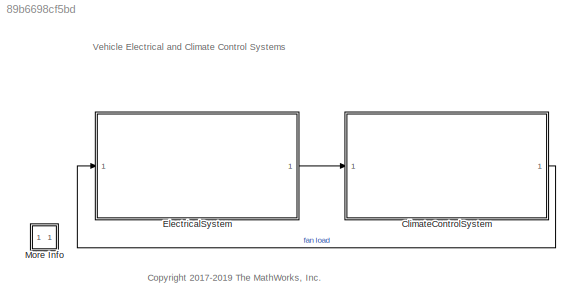
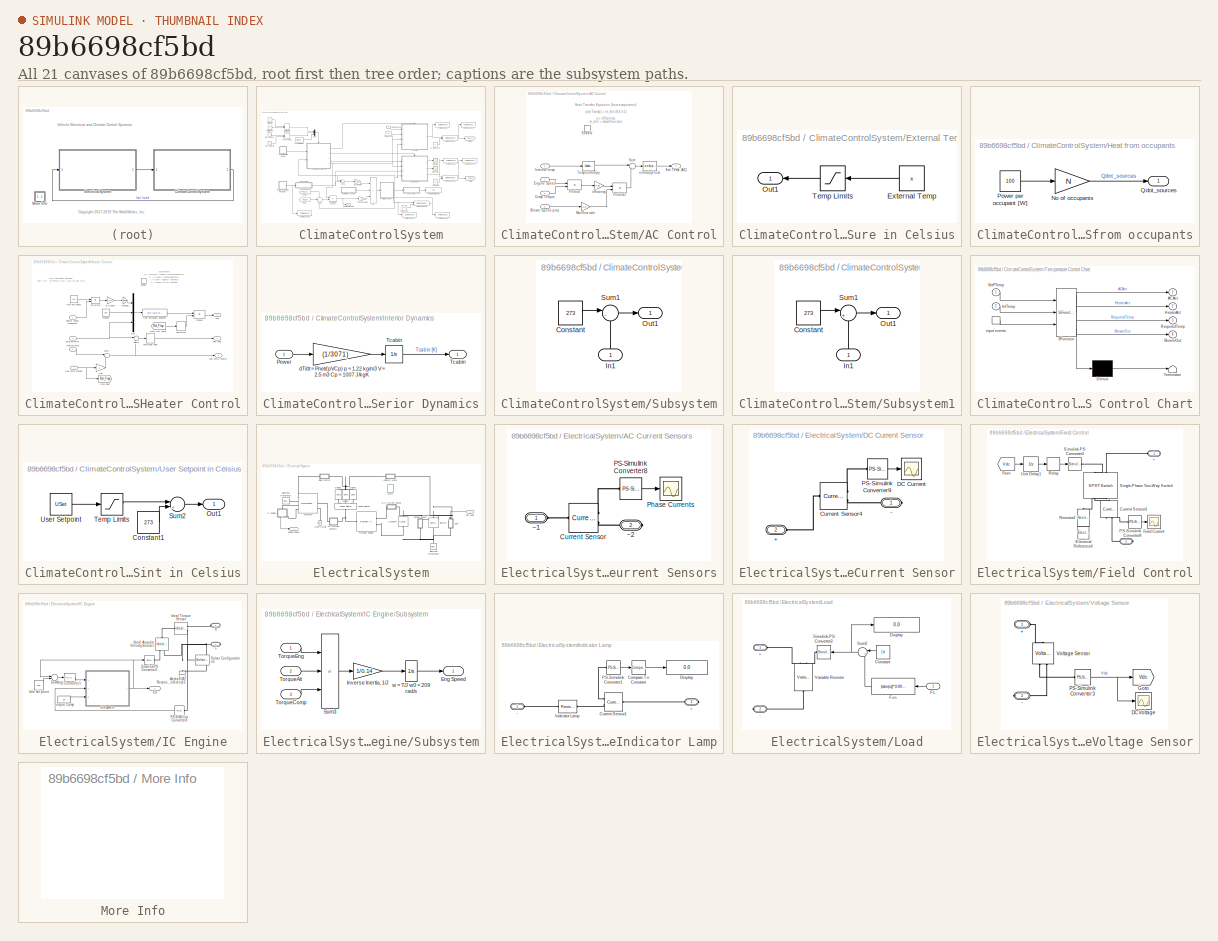
[diagram: thumbnail index - all 21 canvases of the model, root first then tree order]
MODEL slx_89b6698cf5bd
KIND model
CONFIG AbsTol = 1e-4
CONFIG EnableMultiTasking = on
CONFIG FixedStep = auto
CONFIG MaxStep = 1e-4
CONFIG MinStep = auto
CONFIG RelTol = 1e-4
CONFIG SampleTimeConstraint = Unconstrained
CONFIG SolverName = ode23t
CONFIG StartTime = 0.0
CONFIG StopTime = 1
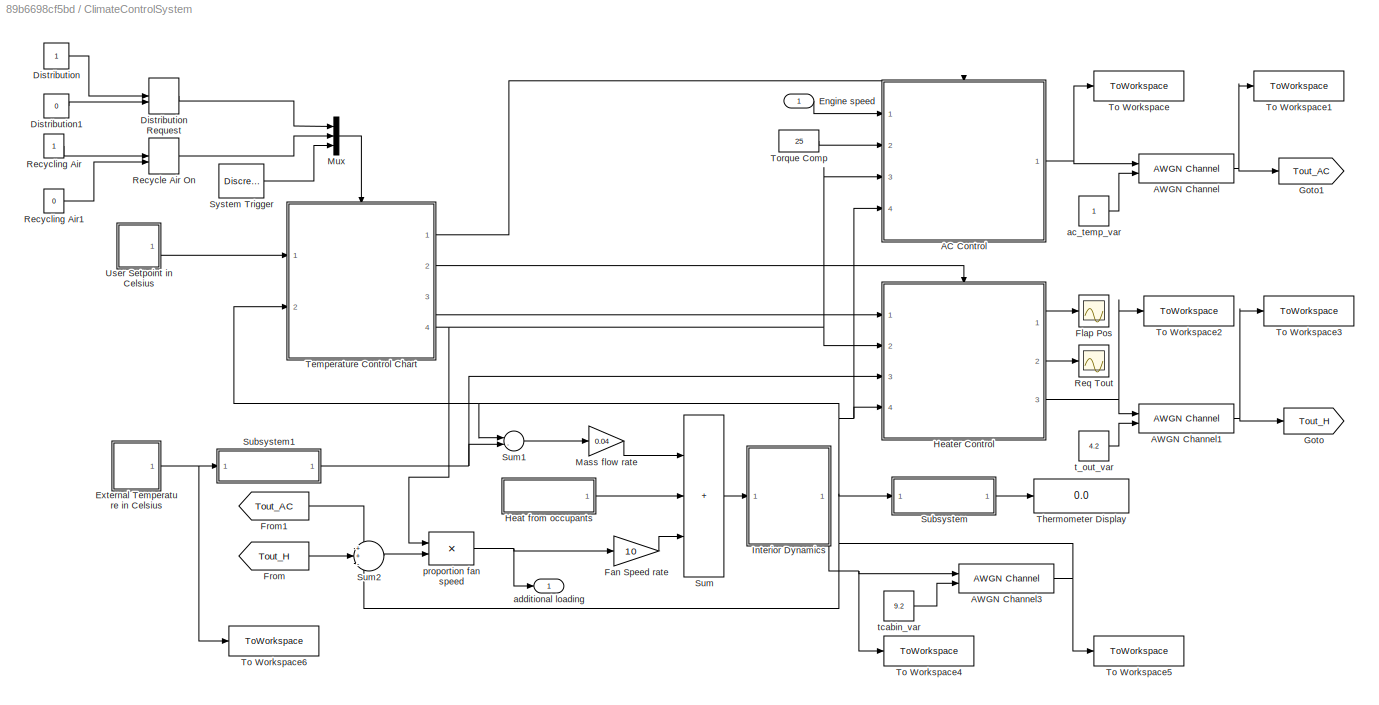
BLOCK [SubSystem] ClimateControlSystem
  Ports = [1, 1]
  RequestExecContextInheritance = off
BLOCK [SubSystem] ClimateControlSystem/AC Control
  Ports = [4, 1, 1]
  RequestExecContextInheritance = off
  TreatAsAtomicUnit = on
BLOCK [Inport] ClimateControlSystem/AC Control/Blower Speed prop
  Port = 3
BLOCK [Inport] ClimateControlSystem/AC Control/Comp Torque
  Port = 2
BLOCK [EnablePort] ClimateControlSystem/AC Control/Enable
  Ports = []
  PropagateVarSize = During execution
  StatesWhenEnabling = reset
  ZeroCross = off
BLOCK [Inport] ClimateControlSystem/AC Control/Engine Speed
BLOCK [Outport] ClimateControlSystem/AC Control/Exit Temp (AC)
  InitialOutput = 0
  OutputWhenDisabled = reset
  VectorParamsAs1DForOutWhenUnconnected = off
BLOCK [Inport] ClimateControlSystem/AC Control/Internal temp
  Port = 4
BLOCK [Gain] ClimateControlSystem/AC Control/Max flow rate
  Gain = 0.12
  OutDataTypeStr = Inherit: Same as input
  ParamDataTypeStr = Inherit: Same as input
  SaturateOnIntegerOverflow = on
BLOCK [Product] ClimateControlSystem/AC Control/Product
  InputSameDT = on
  OutDataTypeStr = Inherit: Same as first input
  Ports = [2, 1]
  SaturateOnIntegerOverflow = on
BLOCK [Product] ClimateControlSystem/AC Control/Product1
  InputSameDT = on
  Inputs = */
  OutDataTypeStr = Inherit: Same as first input
  Ports = [2, 1]
  SaturateOnIntegerOverflow = on
BLOCK [Sum] ClimateControlSystem/AC Control/Sum
  InputSameDT = on
  Inputs = |+-
  OutDataTypeStr = Inherit: Same as first input
  Ports = [2, 1]
  SaturateOnIntegerOverflow = on
BLOCK [Lookup_n-D] ClimateControlSystem/AC Control/Temp//enthalpy
  BreakpointsForDimension1 = [220 230 240 250 260 270 280 285 290 295 300 305 310 315 320]
  InputPortMap = u0
  NumberOfTableDimensions = 1
  Ports = [1, 1]
  SaturateOnIntegerOverflow = on
  Table = [219.97 230.02 240.02 250.05 260.09 270.11 280.13 285.14 290.16 295.17 300.19 305.22 310.24 315.27 320.29]
BLOCK [Gain] ClimateControlSystem/AC Control/efficiency
  Gain = 0.86
  OutDataTypeStr = Inherit: Same as input
  ParamDataTypeStr = Inherit: Same as input
  SaturateOnIntegerOverflow = on
BLOCK [Lookup_n-D] ClimateControlSystem/AC Control/enthalpy//Texit
  BreakpointsForDimension1 = [219.97 230.02 240.02 250.05 260.09 270.11 280.13 285.14 290.16 295.17 300.19 305.22 310.24 315.27 320.29]
  InputPortMap = u0
  NumberOfTableDimensions = 1
  Ports = [1, 1]
  SaturateOnIntegerOverflow = on
  Table = [220 230 240 250 260 270 280 285 290 295 300 305 310 315 320]
BLOCK [Reference] ClimateControlSystem/AWGN Channel  REF=commchan3/AWGN
Channel
  Ports = [2, 1]
  SourceBlock = commchan3/AWGN\nChannel
  SourceProductBaseCode = CM
  SourceType = AWGN Channel
  UserDataPersistent = on
BLOCK [Reference] ClimateControlSystem/AWGN Channel1  REF=commchan3/AWGN
Channel
  Ports = [2, 1]
  SourceBlock = commchan3/AWGN\nChannel
  SourceProductBaseCode = CM
  SourceType = AWGN Channel
  UserDataPersistent = on
BLOCK [Reference] ClimateControlSystem/AWGN Channel3  REF=commchan3/AWGN
Channel
  Ports = [2, 1]
  SourceBlock = commchan3/AWGN\nChannel
  SourceProductBaseCode = CM
  SourceType = AWGN Channel
  UserDataPersistent = on
BLOCK [Constant] ClimateControlSystem/Distribution 
BLOCK [ManualSwitch] ClimateControlSystem/Distribution Request
  CurrentSetting = 0
  NameLocation = top
BLOCK [Constant] ClimateControlSystem/Distribution1 
  Value = 0
BLOCK [Inport] ClimateControlSystem/Engine speed
BLOCK [SubSystem] ClimateControlSystem/External Temperature in Celsius
  Ports = [0, 1]
  RequestExecContextInheritance = off
BLOCK [Constant] ClimateControlSystem/External Temperature in Celsius/External Temp
  Value = x
BLOCK [Outport] ClimateControlSystem/External Temperature in Celsius/Out1
  VectorParamsAs1DForOutWhenUnconnected = off
BLOCK [Saturate] ClimateControlSystem/External Temperature in Celsius/Temp Limits
  LowerLimit = -99
  UpperLimit = 100
BLOCK [Gain] ClimateControlSystem/Fan Speed rate
  Gain = 10
  OutDataTypeStr = Inherit: Same as input
  ParamDataTypeStr = Inherit: Same as input
  SaturateOnIntegerOverflow = on
BLOCK [Scope] ClimateControlSystem/Flap Pos
  Floating = off
  NumInputPorts = 1
  Ports = [1]
  ScopeSpecificationString = Simulink.scopes.TimeScopeBlockCfg('CurrentConfiguration', extmgr.ConfigurationSet(extmgr.Configuration('Core','General UI',true),extmgr.Configuration('Core','Source UI',true),extmgr.Configuration('Sources','WiredSimulink',true,'DataLoggingSaveFormat','StructureWithTime','DataLoggingDecimation','1'),extmgr.Configuration('Visuals','Time Domain',true,'SerializedDisplays',{struct('MinYLimReal','-1.000...<+1768ch>
BLOCK [From] ClimateControlSystem/From
  CloseFcn = tagdialog Close
  GotoTag = Tout_H
BLOCK [From] ClimateControlSystem/From1
  CloseFcn = tagdialog Close
  GotoTag = Tout_AC
BLOCK [Goto] ClimateControlSystem/Goto
  GotoTag = Tout_H
BLOCK [Goto] ClimateControlSystem/Goto1
  GotoTag = Tout_AC
BLOCK [SubSystem] ClimateControlSystem/Heat from occupants
  AttributesFormatString = No. of occupants: %<N>
  Ports = [0, 1]
  RequestExecContextInheritance = off
BLOCK [Gain] ClimateControlSystem/Heat from occupants/No of occupants
  Gain = N
  OutDataTypeStr = Inherit: Same as input
  ParamDataTypeStr = Inherit: Same as input
  SaturateOnIntegerOverflow = on
BLOCK [Constant] ClimateControlSystem/Heat from occupants/Power per occupant [W]
  Value = 100
BLOCK [Outport] ClimateControlSystem/Heat from occupants/Qdot_sources
  VectorParamsAs1DForOutWhenUnconnected = off
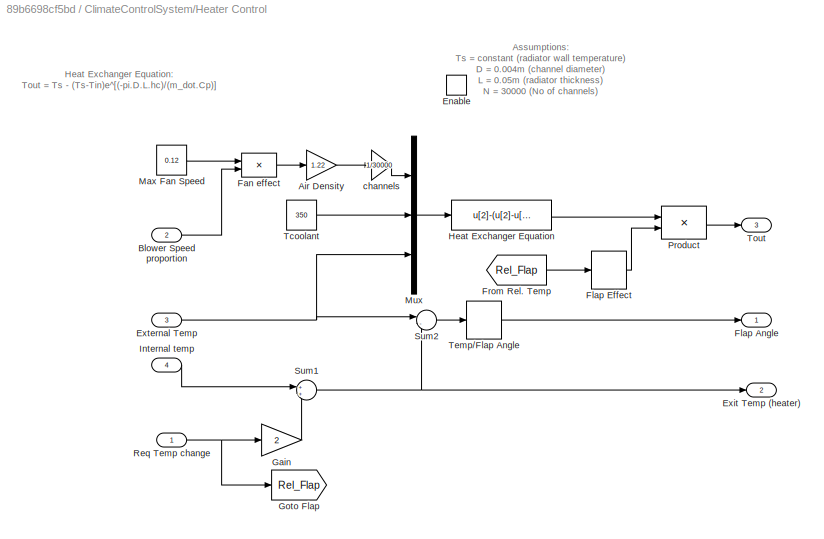
BLOCK [SubSystem] ClimateControlSystem/Heater Control
  Ports = [4, 3, 1]
  RequestExecContextInheritance = off
  TreatAsAtomicUnit = on
BLOCK [Gain] ClimateControlSystem/Heater Control/Air Density
  Gain = 1.22
  OutDataTypeStr = Inherit: Same as input
  ParamDataTypeStr = Inherit: Same as input
  SaturateOnIntegerOverflow = on
BLOCK [Inport] ClimateControlSystem/Heater Control/Blower Speed proportion
  Port = 2
BLOCK [EnablePort] ClimateControlSystem/Heater Control/Enable
  Ports = []
  PropagateVarSize = During execution
  StatesWhenEnabling = reset
  ZeroCross = off
BLOCK [Outport] ClimateControlSystem/Heater Control/Exit Temp (heater)
  InitialOutput = 0
  OutputWhenDisabled = reset
  Port = 2
  VectorParamsAs1DForOutWhenUnconnected = off
BLOCK [Inport] ClimateControlSystem/Heater Control/External Temp
  Port = 3
BLOCK [Product] ClimateControlSystem/Heater Control/Fan effect
  InputSameDT = on
  OutDataTypeStr = Inherit: Same as first input
  Ports = [2, 1]
  SaturateOnIntegerOverflow = on
BLOCK [Outport] ClimateControlSystem/Heater Control/Flap Angle
  InitialOutput = 0
  OutputWhenDisabled = reset
  VectorParamsAs1DForOutWhenUnconnected = off
BLOCK [Lookup_n-D] ClimateControlSystem/Heater Control/Flap Effect
  BreakpointsForDimension1 = [0 3 5 10 50  90 100 200 ]
  InputPortMap = u0
  NumberOfTableDimensions = 1
  Ports = [1, 1]
  SaturateOnIntegerOverflow = on
  Table = [0 300 100  10 10  10 3 1]
BLOCK [From] ClimateControlSystem/Heater Control/From Rel. Temp
  CloseFcn = tagdialog Close
  GotoTag = Rel_Flap
BLOCK [Gain] ClimateControlSystem/Heater Control/Gain
  Gain = 2
  OutDataTypeStr = Inherit: Same as input
  ParamDataTypeStr = Inherit: Same as input
  SaturateOnIntegerOverflow = on
BLOCK [Goto] ClimateControlSystem/Heater Control/Goto Flap
  GotoTag = Rel_Flap
BLOCK [Fcn] ClimateControlSystem/Heater Control/Heat Exchanger Equation
  Expr = u[2]-(u[2]-u[3])*exp(-(pi*0.004*0.05*23.8)/(u[1]*1007))
BLOCK [Inport] ClimateControlSystem/Heater Control/Internal temp
  Port = 4
BLOCK [Constant] ClimateControlSystem/Heater Control/Max Fan Speed
  Value = 0.12
BLOCK [Mux] ClimateControlSystem/Heater Control/Mux
  DisplayOption = bar
  Inputs = 3
  Ports = [3, 1]
BLOCK [Product] ClimateControlSystem/Heater Control/Product
  InputSameDT = on
  OutDataTypeStr = Inherit: Same as first input
  Ports = [2, 1]
  SaturateOnIntegerOverflow = on
BLOCK [Inport] ClimateControlSystem/Heater Control/Req Temp change
BLOCK [Sum] ClimateControlSystem/Heater Control/Sum1
  InputSameDT = on
  OutDataTypeStr = Inherit: Same as first input
  Ports = [2, 1]
  SaturateOnIntegerOverflow = on
BLOCK [Sum] ClimateControlSystem/Heater Control/Sum2
  InputSameDT = on
  Inputs = |-+
  NameLocation = top
  OutDataTypeStr = Inherit: Same as first input
  Ports = [2, 1]
  SaturateOnIntegerOverflow = on
BLOCK [Constant] ClimateControlSystem/Heater Control/Tcoolant 
  Value = 350
BLOCK [Lookup_n-D] ClimateControlSystem/Heater Control/Temp//Flap Angle
  BreakpointsForDimension1 = [0 10 20 30 40 50 60 75 100 200]
  InputPortMap = u0
  NumberOfTableDimensions = 1
  Ports = [1, 1]
  SaturateOnIntegerOverflow = on
  Table = [0 20 30 45 60 75 90 90 90 90]
BLOCK [Outport] ClimateControlSystem/Heater Control/Tout
  InitialOutput = 0
  OutputWhenDisabled = reset
  Port = 3
  VectorParamsAs1DForOutWhenUnconnected = off
BLOCK [Gain] ClimateControlSystem/Heater Control/channels
  Gain = 1/30000
  OutDataTypeStr = Inherit: Same as input
  ParamDataTypeStr = Inherit: Same as input
  SaturateOnIntegerOverflow = on
BLOCK [SubSystem] ClimateControlSystem/Interior Dynamics
  Ports = [1, 1]
  RequestExecContextInheritance = off
BLOCK [Inport] ClimateControlSystem/Interior Dynamics/Power
BLOCK [Integrator] ClimateControlSystem/Interior Dynamics/Tcabin
  InitialCondition = 291
  Ports = [1, 1]
  ZeroCross = off
BLOCK [Outport] ClimateControlSystem/Interior Dynamics/Tcabin 
  VectorParamsAs1DForOutWhenUnconnected = off
BLOCK [Gain] ClimateControlSystem/Interior Dynamics/dT//dt = Pnet//(pVCp) p = 1.22 kg//m3 V = 2.5 m3 Cp = 1007 J//kgK
  Gain = (1/3071)
  OutDataTypeStr = Inherit: Same as input
  ParamDataTypeStr = Inherit: Same as input
  SaturateOnIntegerOverflow = on
BLOCK [Gain] ClimateControlSystem/Mass flow rate
  Gain = 0.04
  OutDataTypeStr = Inherit: Same as input
  ParamDataTypeStr = Inherit: Same as input
  SaturateOnIntegerOverflow = on
BLOCK [Mux] ClimateControlSystem/Mux
  DisplayOption = bar
  Inputs = 3
  Ports = [3, 1]
BLOCK [ManualSwitch] ClimateControlSystem/Recycle Air On
  CurrentSetting = 0
BLOCK [Constant] ClimateControlSystem/Recycling Air
BLOCK [Constant] ClimateControlSystem/Recycling Air1
  Value = 0
BLOCK [Scope] ClimateControlSystem/Req Tout
  Floating = off
  NumInputPorts = 1
  Ports = [1]
  ScopeSpecificationString = Simulink.scopes.TimeScopeBlockCfg('CurrentConfiguration', extmgr.ConfigurationSet(extmgr.Configuration('Core','General UI',true),extmgr.Configuration('Core','Source UI',true),extmgr.Configuration('Sources','WiredSimulink',true,'DataLoggingVariableName','ScopeData1','DataLoggingSaveFormat','StructureWithTime','DataLoggingDecimation','1'),extmgr.Configuration('Visuals','Time Domain',true,'Serialized...<+1782ch>
BLOCK [SubSystem] ClimateControlSystem/Subsystem
  NameLocation = top
  Ports = [1, 1]
  RequestExecContextInheritance = off
BLOCK [Constant] ClimateControlSystem/Subsystem/Constant
  Value = 273
BLOCK [Inport] ClimateControlSystem/Subsystem/In1
  NameLocation = right
BLOCK [Outport] ClimateControlSystem/Subsystem/Out1
  VectorParamsAs1DForOutWhenUnconnected = off
BLOCK [Sum] ClimateControlSystem/Subsystem/Sum1
  InputSameDT = on
  Inputs = |-+
  OutDataTypeStr = Inherit: Same as first input
  Ports = [2, 1]
  SaturateOnIntegerOverflow = on
BLOCK [SubSystem] ClimateControlSystem/Subsystem1
  NameLocation = top
  Ports = [1, 1]
  RequestExecContextInheritance = off
BLOCK [Constant] ClimateControlSystem/Subsystem1/Constant
  Value = 273
BLOCK [Inport] ClimateControlSystem/Subsystem1/In1
  NameLocation = right
BLOCK [Outport] ClimateControlSystem/Subsystem1/Out1
  VectorParamsAs1DForOutWhenUnconnected = off
BLOCK [Sum] ClimateControlSystem/Subsystem1/Sum1
  InputSameDT = on
  Inputs = |++
  OutDataTypeStr = Inherit: Same as first input
  Ports = [2, 1]
  SaturateOnIntegerOverflow = on
BLOCK [Sum] ClimateControlSystem/Sum
  IconShape = rectangular
  InputSameDT = on
  Inputs = +++
  OutDataTypeStr = Inherit: Same as first input
  Ports = [3, 1]
  SaturateOnIntegerOverflow = on
BLOCK [Sum] ClimateControlSystem/Sum1
  InputSameDT = on
  Inputs = |-+
  OutDataTypeStr = Inherit: Same as first input
  Ports = [2, 1]
  SaturateOnIntegerOverflow = on
BLOCK [Sum] ClimateControlSystem/Sum2
  InputSameDT = on
  Inputs = ++-
  OutDataTypeStr = Inherit: Same as first input
  Ports = [3, 1]
  SaturateOnIntegerOverflow = on
BLOCK [DiscretePulseGenerator] ClimateControlSystem/System Trigger
  Period = 1/60
  Ports = [0, 1]
  PulseType = Time based
  PulseWidth = 50
BLOCK [SubSystem] ClimateControlSystem/Temperature Control Chart
  ErrorFcn = Stateflow.Translate.translate
  PermitHierarchicalResolution = ExplicitOnly
  Ports = [2, 4, 0, 1]
  RequestExecContextInheritance = off
  SFBlockType = Chart
  TreatAsAtomicUnit = on
BLOCK [Outport] ClimateControlSystem/Temperature Control Chart/ ACAct
  VectorParamsAs1DForOutWhenUnconnected = off
BLOCK [Demux] ClimateControlSystem/Temperature Control Chart/ Demux 
  Outputs = 1
  Ports = [1, 1]
BLOCK [Outport] ClimateControlSystem/Temperature Control Chart/ HeaterAct
  Port = 2
  VectorParamsAs1DForOutWhenUnconnected = off
BLOCK [S-Function] ClimateControlSystem/Temperature Control Chart/ SFunction 
  EnableBusSupport = on
  FunctionName = sf_sfun
  PortCounts = [3 5]
  Ports = [3, 5]
  SFcnIsStateOwnerBlock = off
  SFunctionDeploymentMode = off
  Tag = Stateflow S-Function 1
BLOCK [Terminator] ClimateControlSystem/Temperature Control Chart/ Terminator 
BLOCK [TriggerPort] ClimateControlSystem/Temperature Control Chart/ input events 
  Ports = [0, 1]
  ShowOutputPort = on
  TriggerType = either
  VariantControl = Variant
  ZeroCross = off
BLOCK [Outport] ClimateControlSystem/Temperature Control Chart/BlowerOut
  Port = 4
  VectorParamsAs1DForOutWhenUnconnected = off
BLOCK [Inport] ClimateControlSystem/Temperature Control Chart/IntTemp
  Port = 2
BLOCK [Outport] ClimateControlSystem/Temperature Control Chart/RequiredTemp
  Port = 3
  VectorParamsAs1DForOutWhenUnconnected = off
BLOCK [Inport] ClimateControlSystem/Temperature Control Chart/SetPTemp
BLOCK [Display] ClimateControlSystem/Thermometer Display
  Decimation = 1
  Ports = [1]
BLOCK [ToWorkspace] ClimateControlSystem/To Workspace
  FixptAsFi = on
  MaxDataPoints = inf
  Ports = [1]
  SampleTime = -1
  Save2DSignal = 2-D array (concatenate along first dimension)
  VariableName = ac_temp
BLOCK [ToWorkspace] ClimateControlSystem/To Workspace1
  FixptAsFi = on
  MaxDataPoints = inf
  Ports = [1]
  SampleTime = -1
  Save2DSignal = 2-D array (concatenate along first dimension)
  VariableName = noisy_ac_temp
BLOCK [ToWorkspace] ClimateControlSystem/To Workspace2
  FixptAsFi = on
  MaxDataPoints = inf
  Ports = [1]
  SampleTime = -1
  Save2DSignal = 2-D array (concatenate along first dimension)
  VariableName = t_out
BLOCK [ToWorkspace] ClimateControlSystem/To Workspace3
  FixptAsFi = on
  MaxDataPoints = inf
  Ports = [1]
  SampleTime = -1
  Save2DSignal = 2-D array (concatenate along first dimension)
  VariableName = noisy_t_out
BLOCK [ToWorkspace] ClimateControlSystem/To Workspace4
  FixptAsFi = on
  MaxDataPoints = inf
  Ports = [1]
  SampleTime = -1
  Save2DSignal = 2-D array (concatenate along first dimension)
  VariableName = tcabin
BLOCK [ToWorkspace] ClimateControlSystem/To Workspace5
  FixptAsFi = on
  MaxDataPoints = inf
  Ports = [1]
  SampleTime = -1
  Save2DSignal = 2-D array (concatenate along first dimension)
  VariableName = noisy_tcabin
BLOCK [ToWorkspace] ClimateControlSystem/To Workspace6
  FixptAsFi = on
  MaxDataPoints = inf
  Ports = [1]
  SampleTime = -1
  Save2DSignal = 2-D array (concatenate along first dimension)
  VariableName = noisy_external
BLOCK [Constant] ClimateControlSystem/Torque Comp
  Value = 25
BLOCK [SubSystem] ClimateControlSystem/User Setpoint in Celsius
  Ports = [0, 1]
  RequestExecContextInheritance = off
BLOCK [Constant] ClimateControlSystem/User Setpoint in Celsius/Constant1
  Value = 273
BLOCK [Outport] ClimateControlSystem/User Setpoint in Celsius/Out1
  VectorParamsAs1DForOutWhenUnconnected = off
BLOCK [Sum] ClimateControlSystem/User Setpoint in Celsius/Sum2
  InputSameDT = on
  Inputs = |++
  OutDataTypeStr = Inherit: Same as first input
  Ports = [2, 1]
  SaturateOnIntegerOverflow = on
BLOCK [Saturate] ClimateControlSystem/User Setpoint in Celsius/Temp Limits
  LowerLimit = -99
  UpperLimit = 100
BLOCK [Constant] ClimateControlSystem/User Setpoint in Celsius/User Setpoint
  Value = USet
BLOCK [Constant] ClimateControlSystem/ac_temp_var
BLOCK [Outport] ClimateControlSystem/additional loading
  VectorParamsAs1DForOutWhenUnconnected = off
BLOCK [Product] ClimateControlSystem/proportion fan speed
  InputSameDT = on
  OutDataTypeStr = Inherit: Same as first input
  Ports = [2, 1]
  SaturateOnIntegerOverflow = on
BLOCK [Constant] ClimateControlSystem/t_out_var
  Value = 4.2
BLOCK [Constant] ClimateControlSystem/tcabin_var
  Value = 9.2
BLOCK [SubSystem] ElectricalSystem
  Ports = [1, 1]
  RequestExecContextInheritance = off
BLOCK [SubSystem] ElectricalSystem/AC Current Sensors
  Ports = [0, 0, 0, 0, 0, 1, 1]
  RequestExecContextInheritance = off
BLOCK [Reference] ElectricalSystem/AC Current Sensors/Current Sensor  REF=ee_lib/Sensors &
Transducers/Current Sensor
(Three-Phase)
  Ports = [0, 0, 0, 0, 0, 1, 2]
  SourceBlock = ee_lib/Sensors &\nTransducers/Current Sensor\n(Three-Phase)
  SourceProductBaseCode = PS
  SourceType = Current Sensor\n(Three-Phase)
BLOCK [Reference] ElectricalSystem/AC Current Sensors/PS-Simulink Converter8  REF=nesl_utility/PS-Simulink
Converter
  Ports = [0, 1, 0, 0, 0, 1]
  SourceBlock = nesl_utility/PS-Simulink\nConverter
  SourceProductBaseCode = PW,SS
  SourceType = PS-Simulink\nConverter
BLOCK [Scope] ElectricalSystem/AC Current Sensors/Phase Currents
  Floating = off
  NumInputPorts = 1
  Ports = [1]
  ScopeSpecificationString = Simulink.scopes.TimeScopeBlockCfg('CurrentConfiguration', extmgr.ConfigurationSet(extmgr.Configuration('Core','General UI',true),extmgr.Configuration('Core','Source UI',true),extmgr.Configuration('Sources','WiredSimulink',true,'DataLoggingSaveFormat','StructureWithTime','DataLoggingDecimation','1','DataLoggingVariableName','ScopeData1'),extmgr.Configuration('Visuals','Time Domain',true,'Serialized...<+1897ch>
BLOCK [PMIOPort] ElectricalSystem/AC Current Sensors/~1
  Side = Left
BLOCK [PMIOPort] ElectricalSystem/AC Current Sensors/~2
  Port = 2
  Side = Right
BLOCK [Reference] ElectricalSystem/Alternator  REF=ee_lib/Electromechanical/Synchronous/Synchronous Machine
Round Rotor
  Ports = [0, 0, 0, 0, 0, 4, 3]
  SourceBlock = ee_lib/Electromechanical/Synchronous/Synchronous Machine\nRound Rotor
  SourceProductBaseCode = PS
  SourceType = Synchronous Machine\nRound Rotor
BLOCK [Reference] ElectricalSystem/Battery  REF=ee_lib/Sources/Battery
  NameLocation = right
  Ports = [0, 0, 0, 0, 0, 1, 1]
  SourceBlock = ee_lib/Sources/Battery
  SourceProductBaseCode = PS
  SourceType = Battery
BLOCK [Reference] ElectricalSystem/Capacitor  REF=fl_lib/Electrical/Electrical Elements/Capacitor
  NameLocation = left
  Ports = [0, 0, 0, 0, 0, 1, 1]
  SourceBlock = fl_lib/Electrical/Electrical Elements/Capacitor
  SourceProductBaseCode = SS
  SourceType = Capacitor
BLOCK [SubSystem] ElectricalSystem/DC Current Sensor
  Ports = [0, 0, 0, 0, 0, 1, 1]
  RequestExecContextInheritance = off
BLOCK [Scope] ElectricalSystem/DC Current Sensor/ DC Current
  Floating = off
  NumInputPorts = 1
  Ports = [1]
  ScopeSpecificationString = Simulink.scopes.TimeScopeBlockCfg('CurrentConfiguration', extmgr.ConfigurationSet(extmgr.Configuration('Core','General UI',true),extmgr.Configuration('Core','Source UI',true),extmgr.Configuration('Sources','WiredSimulink',true,'DataLoggingSaveFormat','StructureWithTime','DataLoggingDecimation','1','DataLoggingVariableName','ScopeData4'),extmgr.Configuration('Visuals','Time Domain',true,'Serialized...<+1812ch>
BLOCK [PMIOPort] ElectricalSystem/DC Current Sensor/+
  Port = 2
  Side = Left
BLOCK [PMIOPort] ElectricalSystem/DC Current Sensor/-
  Side = Right
BLOCK [Reference] ElectricalSystem/DC Current Sensor/Current Sensor4  REF=fl_lib/Electrical/Electrical Sensors/Current Sensor
  NameLocation = top
  Ports = [0, 0, 0, 0, 0, 1, 2]
  SourceBlock = fl_lib/Electrical/Electrical Sensors/Current Sensor
  SourceProductBaseCode = SS
  SourceType = Current Sensor
BLOCK [Reference] ElectricalSystem/DC Current Sensor/PS-Simulink Converter9  REF=nesl_utility/PS-Simulink
Converter
  Ports = [0, 1, 0, 0, 0, 1]
  SourceBlock = nesl_utility/PS-Simulink\nConverter
  SourceProductBaseCode = PW,SS
  SourceType = PS-Simulink\nConverter
BLOCK [Reference] ElectricalSystem/Diode1  REF=ee_lib/Semiconductors &
Converters/Diode
  NameLocation = right
  Ports = [0, 0, 0, 0, 0, 1, 1]
  SourceBlock = ee_lib/Semiconductors &\nConverters/Diode
  SourceProductBaseCode = PS
  SourceType = Diode
BLOCK [Reference] ElectricalSystem/Diode2  REF=ee_lib/Semiconductors &
Converters/Diode
  NameLocation = right
  Ports = [0, 0, 0, 0, 0, 1, 1]
  SourceBlock = ee_lib/Semiconductors &\nConverters/Diode
  SourceProductBaseCode = PS
  SourceType = Diode
BLOCK [Reference] ElectricalSystem/Diode3  REF=ee_lib/Semiconductors &
Converters/Diode
  NameLocation = right
  Ports = [0, 0, 0, 0, 0, 1, 1]
  SourceBlock = ee_lib/Semiconductors &\nConverters/Diode
  SourceProductBaseCode = PS
  SourceType = Diode
BLOCK [Reference] ElectricalSystem/Electrical Reference  REF=fl_lib/Electrical/Electrical Elements/Electrical Reference
  Ports = [0, 0, 0, 0, 0, 1]
  SourceBlock = fl_lib/Electrical/Electrical Elements/Electrical Reference
  SourceProductBaseCode = SS
  SourceType = Electrical Reference
BLOCK [Reference] ElectricalSystem/Electrical Reference2  REF=fl_lib/Electrical/Electrical Elements/Electrical Reference
  NameLocation = right
  Ports = [0, 0, 0, 0, 0, 1]
  SourceBlock = fl_lib/Electrical/Electrical Elements/Electrical Reference
  SourceProductBaseCode = SS
  SourceType = Electrical Reference
BLOCK [Outport] ElectricalSystem/Engine Speed
  InitialOutput = 0
  VectorParamsAs1DForOutWhenUnconnected = off
BLOCK [Inport] ElectricalSystem/Fan Load
BLOCK [SubSystem] ElectricalSystem/Field Control
  NameLocation = top
  Ports = [0, 0, 0, 0, 0, 1, 1]
  RequestExecContextInheritance = off
BLOCK [PMIOPort] ElectricalSystem/Field Control/+
  Side = Left
BLOCK [PMIOPort] ElectricalSystem/Field Control/-
  Port = 2
  Side = Right
BLOCK [Reference] ElectricalSystem/Field Control/Current Sensor3  REF=fl_lib/Electrical/Electrical Sensors/Current Sensor
  NameLocation = left
  Ports = [0, 0, 0, 0, 0, 1, 2]
  SourceBlock = fl_lib/Electrical/Electrical Sensors/Current Sensor
  SourceProductBaseCode = SS
  SourceType = Current Sensor
BLOCK [Reference] ElectricalSystem/Field Control/Electrical Reference4  REF=fl_lib/Electrical/Electrical Elements/Electrical Reference
  NameLocation = right
  Ports = [0, 0, 0, 0, 0, 1]
  SourceBlock = fl_lib/Electrical/Electrical Elements/Electrical Reference
  SourceProductBaseCode = SS
  SourceType = Electrical Reference
BLOCK [Scope] ElectricalSystem/Field Control/Field Current
  Floating = off
  NumInputPorts = 1
  Ports = [1]
  ScopeSpecificationString = Simulink.scopes.TimeScopeBlockCfg('CurrentConfiguration', extmgr.ConfigurationSet(extmgr.Configuration('Core','General UI',true),extmgr.Configuration('Core','Source UI',true),extmgr.Configuration('Sources','WiredSimulink',true,'DataLoggingSaveFormat','StructureWithTime','DataLoggingDecimation','1','DataLoggingVariableName','ScopeData2'),extmgr.Configuration('Visuals','Time Domain',true,'Serialized...<+1841ch>
BLOCK [From] ElectricalSystem/Field Control/From
  GotoTag = Vdc
  TagVisibility = global
BLOCK [Reference] ElectricalSystem/Field Control/PS-Simulink Converter8  REF=nesl_utility/PS-Simulink
Converter
  Ports = [0, 1, 0, 0, 0, 1]
  SourceBlock = nesl_utility/PS-Simulink\nConverter
  SourceProductBaseCode = PW,SS
  SourceType = PS-Simulink\nConverter
BLOCK [Relay] ElectricalSystem/Field Control/Relay
  OffSwitchValue = 13.5
  OnSwitchValue = 14.5
BLOCK [Reference] ElectricalSystem/Field Control/Resistor2  REF=fl_lib/Electrical/Electrical Elements/Resistor
  NameLocation = left
  Ports = [0, 0, 0, 0, 0, 1, 1]
  SourceBlock = fl_lib/Electrical/Electrical Elements/Resistor
  SourceProductBaseCode = SS
  SourceType = Resistor
BLOCK [Reference] ElectricalSystem/Field Control/Simulink-PS Converter3  REF=nesl_utility/Simulink-PS
Converter
  Ports = [1, 0, 0, 0, 0, 0, 1]
  SourceBlock = nesl_utility/Simulink-PS\nConverter
  SourceProductBaseCode = PW,SS
  SourceType = Simulink-PS\nConverter
BLOCK [Reference] ElectricalSystem/Field Control/Single-Phase Two-Way Switch  REF=ee_lib/Switches & Breakers/SPDT Switch
  NameLocation = left
  Ports = [0, 0, 0, 0, 0, 2, 2]
  SourceBlock = ee_lib/Switches & Breakers/SPDT Switch
  SourceProductBaseCode = PS
  SourceType = SPDT Switch
BLOCK [UnitDelay] ElectricalSystem/Field Control/Unit Delay1
  HasFrameUpgradeWarning = on
  InitialCondition = 12
  SampleTime = -1
BLOCK [SubSystem] ElectricalSystem/IC Engine
  NameLocation = left
  Ports = [0, 1, 0, 0, 0, 1, 1]
  RequestExecContextInheritance = off
BLOCK [PMIOPort] ElectricalSystem/IC Engine/C
  Port = 2
  Side = Right
BLOCK [Outport] ElectricalSystem/IC Engine/ES
  InitialOutput = 0
  VectorParamsAs1DForOutWhenUnconnected = off
BLOCK [Reference] ElectricalSystem/IC Engine/Ideal Angular Velocity Source1  REF=fl_lib/Mechanical/Mechanical Sources/Ideal Angular
Velocity Source
  NameLocation = right
  Ports = [0, 0, 0, 0, 0, 1, 2]
  SourceBlock = fl_lib/Mechanical/Mechanical Sources/Ideal Angular\nVelocity Source
  SourceProductBaseCode = SS
  SourceType = Ideal Angular\nVelocity Source
BLOCK [Reference] ElectricalSystem/IC Engine/Ideal Torque Sensor  REF=fl_lib/Mechanical/Mechanical Sensors/Ideal Torque Sensor
  Ports = [0, 0, 0, 0, 0, 1, 2]
  SourceBlock = fl_lib/Mechanical/Mechanical Sensors/Ideal Torque Sensor
  SourceProductBaseCode = SS
  SourceType = Ideal Torque Sensor
BLOCK [Constant] ElectricalSystem/IC Engine/Idle set point
  Value = 200
BLOCK [Reference] ElectricalSystem/IC Engine/Mechanical Rotational Reference2  REF=fl_lib/Mechanical/Rotational Elements/Mechanical
Rotational Reference
  NameLocation = right
  Ports = [0, 0, 0, 0, 0, 1]
  SourceBlock = fl_lib/Mechanical/Rotational Elements/Mechanical\nRotational Reference
  SourceProductBaseCode = SS
  SourceType = Mechanical\nRotational Reference
BLOCK [Reference] ElectricalSystem/IC Engine/PID Controller1  REF=slpidlib/PID Controller
  Ports = [1, 1]
  SourceBlock = slpidlib/PID Controller
  SourceProductBaseCode = SL
  SourceType = PID 1dof
BLOCK [Reference] ElectricalSystem/IC Engine/PS-Simulink Converter8  REF=nesl_utility/PS-Simulink
Converter
  Ports = [0, 1, 0, 0, 0, 1]
  SourceBlock = nesl_utility/PS-Simulink\nConverter
  SourceProductBaseCode = PW,SS
  SourceType = PS-Simulink\nConverter
BLOCK [PMIOPort] ElectricalSystem/IC Engine/R
  Side = Left
BLOCK [Reference] ElectricalSystem/IC Engine/Simulink-PS Converter2  REF=nesl_utility/Simulink-PS
Converter
  Ports = [1, 0, 0, 0, 0, 0, 1]
  SourceBlock = nesl_utility/Simulink-PS\nConverter
  SourceProductBaseCode = PW,SS
  SourceType = Simulink-PS\nConverter
BLOCK [Reference] ElectricalSystem/IC Engine/Solver Configuration2  REF=nesl_utility/Solver
Configuration
  Ports = [0, 0, 0, 0, 0, 0, 1]
  SourceBlock = nesl_utility/Solver\nConfiguration
  SourceProductBaseCode = PW,SS
  SourceType = Solver\nConfiguration
BLOCK [SubSystem] ElectricalSystem/IC Engine/Subsystem
  Ports = [3, 1]
  RequestExecContextInheritance = off
BLOCK [Outport] ElectricalSystem/IC Engine/Subsystem/Eng Speed
  InitialOutput = 0
  VectorParamsAs1DForOutWhenUnconnected = off
BLOCK [Gain] ElectricalSystem/IC Engine/Subsystem/Inverse Inertia, 1//J
  Gain = 1/0.14
  OutDataTypeStr = Inherit: Same as input
  ParamDataTypeStr = Inherit: Same as input
  SaturateOnIntegerOverflow = on
BLOCK [Sum] ElectricalSystem/IC Engine/Subsystem/Sum3
  IconShape = rectangular
  InputSameDT = on
  Inputs = +--
  OutDataTypeStr = Inherit: Same as first input
  Ports = [3, 1]
  SaturateOnIntegerOverflow = on
BLOCK [Inport] ElectricalSystem/IC Engine/Subsystem/TorqueAlt
  Port = 2
BLOCK [Inport] ElectricalSystem/IC Engine/Subsystem/TorqueComp
  Port = 3
BLOCK [Inport] ElectricalSystem/IC Engine/Subsystem/TorqueEng
BLOCK [Integrator] ElectricalSystem/IC Engine/Subsystem/w = T//J w0 = 209 rad//s
  InitialCondition = 209.48
  Ports = [1, 1]
  ZeroCross = off
BLOCK [Sum] ElectricalSystem/IC Engine/Sum4
  InputSameDT = on
  Inputs = |-+
  OutDataTypeStr = Inherit: Same as first input
  Ports = [2, 1]
  SaturateOnIntegerOverflow = on
BLOCK [Constant] ElectricalSystem/IC Engine/Torque Comp
  Value = 25
BLOCK [SubSystem] ElectricalSystem/Indicator Lamp
  Ports = [0, 0, 0, 0, 0, 1, 1]
  RequestExecContextInheritance = off
BLOCK [PMIOPort] ElectricalSystem/Indicator Lamp/+
  NameLocation = top
  Port = 2
  Side = Right
BLOCK [PMIOPort] ElectricalSystem/Indicator Lamp/-
  Side = Left
BLOCK [Reference] ElectricalSystem/Indicator Lamp/Compare To Constant  REF=simulink/Logic and Bit
Operations/Compare
To Constant
  Ports = [1, 1]
  SourceBlock = simulink/Logic and Bit\nOperations/Compare\nTo Constant
  SourceProductBaseCode = SL
  SourceType = Compare To Constant
BLOCK [Reference] ElectricalSystem/Indicator Lamp/Current Sensor1  REF=fl_lib/Electrical/Electrical Sensors/Current Sensor
  NameLocation = top
  Ports = [0, 0, 0, 0, 0, 1, 2]
  SourceBlock = fl_lib/Electrical/Electrical Sensors/Current Sensor
  SourceProductBaseCode = SS
  SourceType = Current Sensor
BLOCK [Display] ElectricalSystem/Indicator Lamp/Display
  Decimation = 1
  Ports = [1]
BLOCK [Reference] ElectricalSystem/Indicator Lamp/Indicator Lamp  REF=fl_lib/Electrical/Electrical Elements/Resistor
  Ports = [0, 0, 0, 0, 0, 1, 1]
  SourceBlock = fl_lib/Electrical/Electrical Elements/Resistor
  SourceProductBaseCode = SS
  SourceType = Resistor
BLOCK [Reference] ElectricalSystem/Indicator Lamp/PS-Simulink Converter1  REF=nesl_utility/PS-Simulink
Converter
  Ports = [0, 1, 0, 0, 0, 1]
  SourceBlock = nesl_utility/PS-Simulink\nConverter
  SourceProductBaseCode = PW,SS
  SourceType = PS-Simulink\nConverter
BLOCK [LampBlock] ElectricalSystem/Lamp
  LabelPosition = Hide
BLOCK [SubSystem] ElectricalSystem/Load
  NameLocation = left
  Ports = [1, 0, 0, 0, 0, 1, 1]
  RequestExecContextInheritance = off
BLOCK [PMIOPort] ElectricalSystem/Load/+
  Side = Left
BLOCK [PMIOPort] ElectricalSystem/Load/-
  Port = 2
  Side = Right
BLOCK [Constant] ElectricalSystem/Load/Constant
  Value = 14
BLOCK [Display] ElectricalSystem/Load/Display
  Decimation = 1
  Ports = [1]
BLOCK [Inport] ElectricalSystem/Load/FL
BLOCK [Fcn] ElectricalSystem/Load/Fcn
  Expr = (abs(u))*0.0001
  NameLocation = top
BLOCK [Reference] ElectricalSystem/Load/Simulink-PS Converter2  REF=nesl_utility/Simulink-PS
Converter
  Ports = [1, 0, 0, 0, 0, 0, 1]
  SourceBlock = nesl_utility/Simulink-PS\nConverter
  SourceProductBaseCode = PW,SS
  SourceType = Simulink-PS\nConverter
BLOCK [Sum] ElectricalSystem/Load/Sum2
  InputSameDT = on
  Inputs = |++
  OutDataTypeStr = Inherit: Same as first input
  Ports = [2, 1]
  SaturateOnIntegerOverflow = on
BLOCK [Reference] ElectricalSystem/Load/Variable Resistor  REF=fl_lib/Electrical/Electrical Elements/Variable Resistor
  NameLocation = right
  Ports = [0, 0, 0, 0, 0, 2, 1]
  SourceBlock = fl_lib/Electrical/Electrical Elements/Variable Resistor
  SourceProductBaseCode = SS
  SourceType = Variable Resistor
BLOCK [Reference] ElectricalSystem/Open Circuit  REF=fl_lib/Electrical/Electrical Elements/Open Circuit
  NameLocation = right
  Ports = [0, 0, 0, 0, 0, 1]
  SourceBlock = fl_lib/Electrical/Electrical Elements/Open Circuit
  SourceProductBaseCode = SS
  SourceType = Open Circuit
BLOCK [Reference] ElectricalSystem/Phase Splitter  REF=ee_lib/Connectors &
References/Phase Splitter
  NameLocation = right
  Ports = [0, 0, 0, 0, 0, 1, 3]
  SourceBlock = ee_lib/Connectors &\nReferences/Phase Splitter
  SourceProductBaseCode = PS
  SourceType = Phase Splitter
BLOCK [Reference] ElectricalSystem/Rectifier Bridge  REF=ee_lib/Semiconductors &
Converters/Converters/Rectifier
(Three-Phase)
  Ports = [0, 0, 0, 0, 0, 1, 2]
  SourceBlock = ee_lib/Semiconductors &\nConverters/Converters/Rectifier\n(Three-Phase)
  SourceProductBaseCode = PS
  SourceType = Rectifier\n(Three-Phase)
BLOCK [SubSystem] ElectricalSystem/Voltage Sensor
  NameLocation = left
  Ports = [0, 0, 0, 0, 0, 1, 1]
  RequestExecContextInheritance = off
BLOCK [PMIOPort] ElectricalSystem/Voltage Sensor/+
  Side = Left
BLOCK [PMIOPort] ElectricalSystem/Voltage Sensor/-
  NameLocation = top
  Port = 2
  Side = Right
BLOCK [Scope] ElectricalSystem/Voltage Sensor/DC Voltage
  Floating = off
  NumInputPorts = 1
  Ports = [1]
  ScopeSpecificationString = Simulink.scopes.TimeScopeBlockCfg('CurrentConfiguration', extmgr.ConfigurationSet(extmgr.Configuration('Core','General UI',true),extmgr.Configuration('Core','Source UI',true),extmgr.Configuration('Sources','WiredSimulink',true,'DataLoggingVariableName','ScopeData3','DataLoggingSaveFormat','StructureWithTime','DataLoggingDecimation','1'),extmgr.Configuration('Visuals','Time Domain',true,'Serialized...<+1800ch>
BLOCK [Goto] ElectricalSystem/Voltage Sensor/Goto
  GotoTag = Vdc
  TagVisibility = global
BLOCK [Reference] ElectricalSystem/Voltage Sensor/PS-Simulink Converter3  REF=nesl_utility/PS-Simulink
Converter
  Ports = [0, 1, 0, 0, 0, 1]
  SourceBlock = nesl_utility/PS-Simulink\nConverter
  SourceProductBaseCode = PW,SS
  SourceType = PS-Simulink\nConverter
BLOCK [Reference] ElectricalSystem/Voltage Sensor/Voltage Sensor  REF=fl_lib/Electrical/Electrical Sensors/Voltage Sensor
  NameLocation = right
  Ports = [0, 0, 0, 0, 0, 1, 2]
  SourceBlock = fl_lib/Electrical/Electrical Sensors/Voltage Sensor
  SourceProductBaseCode = SS
  SourceType = Voltage Sensor
BLOCK [SubSystem] More Info
  OpenFcn = showExample('simulink_automotive/VehicleElectricalAndClimateControlSystemsExample')
  Ports = []
  RequestExecContextInheritance = off
ANNOTATION (root): <copyright redacted>
ANNOTATION (root): Vehicle Electrical and Climate Control Systems
ANNOTATION ClimateControlSystem/AC Control: Heat Transfer Equation (from evaporator): y.(w.Tcomp) = m_dot.(h4-h1) y = efficiency m_dot = mass flow rate w = speed of the engine Tcomp = compressor torque h4, h1 = enthalpy
ANNOTATION ClimateControlSystem/Heater Control: Assumptions: Ts = constant (radiator wall temperature) D = 0.004m (channel diameter) L = 0.05m (radiator thickness) N = 30000 (No of channels) k = 0.026 W/mK = constant (thermal conductivity of air) Cp = 1007 J/kgK = constant (specific heat of air) Laminar flow (hc = 3.66(k/D) = 23.8 W/m2K )
ANNOTATION ClimateControlSystem/Heater Control: Heat Exchanger Equation: Tout = Ts - (Ts-Tin)e^[(-pi.D.L.hc)/(m_dot.Cp)]
LINE ClimateControlSystem/AC Control/Blower Speed prop:1 -> ClimateControlSystem/AC Control/Max flow rate:1
LINE ClimateControlSystem/AC Control/Comp Torque:1 -> ClimateControlSystem/AC Control/Product:2
LINE ClimateControlSystem/AC Control/Engine Speed:1 -> ClimateControlSystem/AC Control/Product:1
LINE ClimateControlSystem/AC Control/Internal temp:1 -> ClimateControlSystem/AC Control/Temp//enthalpy:1
LINE ClimateControlSystem/AC Control/Max flow rate:1 -> ClimateControlSystem/AC Control/Product1:2
LINE ClimateControlSystem/AC Control/Product1:1 -> ClimateControlSystem/AC Control/Sum:2
LINE ClimateControlSystem/AC Control/Product:1 -> ClimateControlSystem/AC Control/efficiency:1
LINE ClimateControlSystem/AC Control/Sum:1 -> ClimateControlSystem/AC Control/enthalpy//Texit:1
LINE ClimateControlSystem/AC Control/Temp//enthalpy:1 -> ClimateControlSystem/AC Control/Sum:1
LINE ClimateControlSystem/AC Control/efficiency:1 -> ClimateControlSystem/AC Control/Product1:1
LINE ClimateControlSystem/AC Control/enthalpy//Texit:1 -> ClimateControlSystem/AC Control/Exit Temp (AC):1
NET ClimateControlSystem/AC Control:1 -> ClimateControlSystem/AWGN Channel:1, ClimateControlSystem/To Workspace:1
NET ClimateControlSystem/AWGN Channel1:1 -> ClimateControlSystem/Goto:1, ClimateControlSystem/To Workspace3:1
NET ClimateControlSystem/AWGN Channel3:1 -> ClimateControlSystem/AC Control:4, ClimateControlSystem/Heater Control:4, ClimateControlSystem/Subsystem:1, ClimateControlSystem/Sum1:1, ClimateControlSystem/Sum2:3, ClimateControlSystem/Temperature Control Chart:2, ClimateControlSystem/To Workspace5:1
NET ClimateControlSystem/AWGN Channel:1 -> ClimateControlSystem/Goto1:1, ClimateControlSystem/To Workspace1:1
LINE ClimateControlSystem/Distribution :1 -> ClimateControlSystem/Distribution Request:1
LINE ClimateControlSystem/Distribution Request:1 -> ClimateControlSystem/Mux:1
LINE ClimateControlSystem/Distribution1 :1 -> ClimateControlSystem/Distribution Request:2
LINE ClimateControlSystem/Engine speed:1 -> ClimateControlSystem/AC Control:1
LINE ClimateControlSystem/External Temperature in Celsius/External Temp:1 -> ClimateControlSystem/External Temperature in Celsius/Temp Limits:1
LINE ClimateControlSystem/External Temperature in Celsius/Temp Limits:1 -> ClimateControlSystem/External Temperature in Celsius/Out1:1
NET ClimateControlSystem/External Temperature in Celsius:1 -> ClimateControlSystem/Subsystem1:1, ClimateControlSystem/To Workspace6:1
LINE ClimateControlSystem/Fan Speed rate:1 -> ClimateControlSystem/Sum:3
LINE ClimateControlSystem/From1:1 -> ClimateControlSystem/Sum2:1
LINE ClimateControlSystem/From:1 -> ClimateControlSystem/Sum2:2
LINE ClimateControlSystem/Heat from occupants/No of occupants:1 -> ClimateControlSystem/Heat from occupants/Qdot_sources:1
LINE ClimateControlSystem/Heat from occupants/Power per occupant [W]:1 -> ClimateControlSystem/Heat from occupants/No of occupants:1
LINE ClimateControlSystem/Heat from occupants:1 -> ClimateControlSystem/Sum:2
LINE ClimateControlSystem/Heater Control/Air Density:1 -> ClimateControlSystem/Heater Control/channels:1
LINE ClimateControlSystem/Heater Control/Blower Speed proportion:1 -> ClimateControlSystem/Heater Control/Fan effect:2
NET ClimateControlSystem/Heater Control/External Temp:1 -> ClimateControlSystem/Heater Control/Mux:3, ClimateControlSystem/Heater Control/Sum2:1
LINE ClimateControlSystem/Heater Control/Fan effect:1 -> ClimateControlSystem/Heater Control/Air Density:1
LINE ClimateControlSystem/Heater Control/Flap Effect:1 -> ClimateControlSystem/Heater Control/Product:2
LINE ClimateControlSystem/Heater Control/From Rel. Temp:1 -> ClimateControlSystem/Heater Control/Flap Effect:1
LINE ClimateControlSystem/Heater Control/Gain:1 -> ClimateControlSystem/Heater Control/Sum1:2
LINE ClimateControlSystem/Heater Control/Heat Exchanger Equation:1 -> ClimateControlSystem/Heater Control/Product:1
LINE ClimateControlSystem/Heater Control/Internal temp:1 -> ClimateControlSystem/Heater Control/Sum1:1
LINE ClimateControlSystem/Heater Control/Max Fan Speed:1 -> ClimateControlSystem/Heater Control/Fan effect:1
LINE ClimateControlSystem/Heater Control/Mux:1 -> ClimateControlSystem/Heater Control/Heat Exchanger Equation:1
LINE ClimateControlSystem/Heater Control/Product:1 -> ClimateControlSystem/Heater Control/Tout:1
NET ClimateControlSystem/Heater Control/Req Temp change:1 -> ClimateControlSystem/Heater Control/Gain:1, ClimateControlSystem/Heater Control/Goto Flap:1
NET ClimateControlSystem/Heater Control/Sum1:1 -> ClimateControlSystem/Heater Control/Exit Temp (heater):1, ClimateControlSystem/Heater Control/Sum2:2
LINE ClimateControlSystem/Heater Control/Sum2:1 -> ClimateControlSystem/Heater Control/Temp//Flap Angle:1
LINE ClimateControlSystem/Heater Control/Tcoolant :1 -> ClimateControlSystem/Heater Control/Mux:2
LINE ClimateControlSystem/Heater Control/Temp//Flap Angle:1 -> ClimateControlSystem/Heater Control/Flap Angle:1
LINE ClimateControlSystem/Heater Control/channels:1 -> ClimateControlSystem/Heater Control/Mux:1
LINE ClimateControlSystem/Heater Control:1 -> ClimateControlSystem/Flap Pos:1
LINE ClimateControlSystem/Heater Control:2 -> ClimateControlSystem/Req Tout:1
NET ClimateControlSystem/Heater Control:3 -> ClimateControlSystem/AWGN Channel1:1, ClimateControlSystem/To Workspace2:1
LINE ClimateControlSystem/Interior Dynamics/Power:1 -> ClimateControlSystem/Interior Dynamics/dT//dt = Pnet//(pVCp) p = 1.22 kg//m3 V = 2.5 m3 Cp = 1007 J//kgK:1
LINE ClimateControlSystem/Interior Dynamics/Tcabin:1 -> ClimateControlSystem/Interior Dynamics/Tcabin :1
LINE ClimateControlSystem/Interior Dynamics/dT//dt = Pnet//(pVCp) p = 1.22 kg//m3 V = 2.5 m3 Cp = 1007 J//kgK:1 -> ClimateControlSystem/Interior Dynamics/Tcabin:1
NET ClimateControlSystem/Interior Dynamics:1 -> ClimateControlSystem/AWGN Channel3:1, ClimateControlSystem/To Workspace4:1
LINE ClimateControlSystem/Mass flow rate:1 -> ClimateControlSystem/Sum:1
LINE ClimateControlSystem/Mux:1 -> ClimateControlSystem/Temperature Control Chart:trigger
LINE ClimateControlSystem/Recycle Air On:1 -> ClimateControlSystem/Mux:2
LINE ClimateControlSystem/Recycling Air1:1 -> ClimateControlSystem/Recycle Air On:2
LINE ClimateControlSystem/Recycling Air:1 -> ClimateControlSystem/Recycle Air On:1
LINE ClimateControlSystem/Subsystem/Constant:1 -> ClimateControlSystem/Subsystem/Sum1:1
LINE ClimateControlSystem/Subsystem/In1:1 -> ClimateControlSystem/Subsystem/Sum1:2
LINE ClimateControlSystem/Subsystem/Sum1:1 -> ClimateControlSystem/Subsystem/Out1:1
LINE ClimateControlSystem/Subsystem1/Constant:1 -> ClimateControlSystem/Subsystem1/Sum1:1
LINE ClimateControlSystem/Subsystem1/In1:1 -> ClimateControlSystem/Subsystem1/Sum1:2
LINE ClimateControlSystem/Subsystem1/Sum1:1 -> ClimateControlSystem/Subsystem1/Out1:1
NET ClimateControlSystem/Subsystem1:1 -> ClimateControlSystem/Heater Control:3, ClimateControlSystem/Sum1:2
LINE ClimateControlSystem/Subsystem:1 -> ClimateControlSystem/Thermometer Display:1
LINE ClimateControlSystem/Sum1:1 -> ClimateControlSystem/Mass flow rate:1
LINE ClimateControlSystem/Sum2:1 -> ClimateControlSystem/proportion fan speed:2
LINE ClimateControlSystem/Sum:1 -> ClimateControlSystem/Interior Dynamics:1
LINE ClimateControlSystem/System Trigger:1 -> ClimateControlSystem/Mux:3
LINE ClimateControlSystem/Temperature Control Chart:1 -> ClimateControlSystem/AC Control:enable
LINE ClimateControlSystem/Temperature Control Chart:2 -> ClimateControlSystem/Heater Control:enable
LINE ClimateControlSystem/Temperature Control Chart:3 -> ClimateControlSystem/Heater Control:1
NET ClimateControlSystem/Temperature Control Chart:4 -> ClimateControlSystem/AC Control:3, ClimateControlSystem/Heater Control:2, ClimateControlSystem/proportion fan speed:1
LINE ClimateControlSystem/Torque Comp:1 -> ClimateControlSystem/AC Control:2
LINE ClimateControlSystem/User Setpoint in Celsius/Constant1:1 -> ClimateControlSystem/User Setpoint in Celsius/Sum2:2
LINE ClimateControlSystem/User Setpoint in Celsius/Sum2:1 -> ClimateControlSystem/User Setpoint in Celsius/Out1:1
LINE ClimateControlSystem/User Setpoint in Celsius/Temp Limits:1 -> ClimateControlSystem/User Setpoint in Celsius/Sum2:1
LINE ClimateControlSystem/User Setpoint in Celsius/User Setpoint:1 -> ClimateControlSystem/User Setpoint in Celsius/Temp Limits:1
LINE ClimateControlSystem/User Setpoint in Celsius:1 -> ClimateControlSystem/Temperature Control Chart:1
LINE ClimateControlSystem/ac_temp_var:1 -> ClimateControlSystem/AWGN Channel:2
NET ClimateControlSystem/proportion fan speed:1 -> ClimateControlSystem/Fan Speed rate:1, ClimateControlSystem/additional loading:1
LINE ClimateControlSystem/t_out_var:1 -> ClimateControlSystem/AWGN Channel1:2
LINE ClimateControlSystem/tcabin_var:1 -> ClimateControlSystem/AWGN Channel3:2
LINE ClimateControlSystem:1 -> ElectricalSystem:1
LINE ElectricalSystem/AC Current Sensors/PS-Simulink Converter8:1 -> ElectricalSystem/AC Current Sensors/Phase Currents:1
LINE ElectricalSystem/DC Current Sensor/PS-Simulink Converter9:1 -> ElectricalSystem/DC Current Sensor/ DC Current:1
LINE ElectricalSystem/Fan Load:1 -> ElectricalSystem/Load:1
LINE ElectricalSystem/Field Control/From:1 -> ElectricalSystem/Field Control/Unit Delay1:1
LINE ElectricalSystem/Field Control/PS-Simulink Converter8:1 -> ElectricalSystem/Field Control/Field Current:1
LINE ElectricalSystem/Field Control/Relay:1 -> ElectricalSystem/Field Control/Simulink-PS Converter3:1
LINE ElectricalSystem/Field Control/Unit Delay1:1 -> ElectricalSystem/Field Control/Relay:1
LINE ElectricalSystem/IC Engine/Idle set point:1 -> ElectricalSystem/IC Engine/Sum4:2
LINE ElectricalSystem/IC Engine/PID Controller1:1 -> ElectricalSystem/IC Engine/Subsystem:1
LINE ElectricalSystem/IC Engine/PS-Simulink Converter8:1 -> ElectricalSystem/IC Engine/Subsystem:2
LINE ElectricalSystem/IC Engine/Subsystem/Inverse Inertia, 1//J:1 -> ElectricalSystem/IC Engine/Subsystem/w = T//J w0 = 209 rad//s:1
LINE ElectricalSystem/IC Engine/Subsystem/Sum3:1 -> ElectricalSystem/IC Engine/Subsystem/Inverse Inertia, 1//J:1
LINE ElectricalSystem/IC Engine/Subsystem/TorqueAlt:1 -> ElectricalSystem/IC Engine/Subsystem/Sum3:2
LINE ElectricalSystem/IC Engine/Subsystem/TorqueComp:1 -> ElectricalSystem/IC Engine/Subsystem/Sum3:3
LINE ElectricalSystem/IC Engine/Subsystem/TorqueEng:1 -> ElectricalSystem/IC Engine/Subsystem/Sum3:1
LINE ElectricalSystem/IC Engine/Subsystem/w = T//J w0 = 209 rad//s:1 -> ElectricalSystem/IC Engine/Subsystem/Eng Speed:1
NET ElectricalSystem/IC Engine/Subsystem:1 -> ElectricalSystem/IC Engine/ES:1, ElectricalSystem/IC Engine/Simulink-PS Converter2:1, ElectricalSystem/IC Engine/Sum4:1
LINE ElectricalSystem/IC Engine/Sum4:1 -> ElectricalSystem/IC Engine/PID Controller1:1
LINE ElectricalSystem/IC Engine/Torque Comp:1 -> ElectricalSystem/IC Engine/Subsystem:3
LINE ElectricalSystem/IC Engine:1 -> ElectricalSystem/Engine Speed:1
LINE ElectricalSystem/Indicator Lamp/Compare To Constant:1 -> ElectricalSystem/Indicator Lamp/Display:1
LINE ElectricalSystem/Indicator Lamp/PS-Simulink Converter1:1 -> ElectricalSystem/Indicator Lamp/Compare To Constant:1
LINE ElectricalSystem/Load/Constant:1 -> ElectricalSystem/Load/Sum2:1
LINE ElectricalSystem/Load/FL:1 -> ElectricalSystem/Load/Fcn:1
LINE ElectricalSystem/Load/Fcn:1 -> ElectricalSystem/Load/Sum2:2
NET ElectricalSystem/Load/Sum2:1 -> ElectricalSystem/Load/Display:1, ElectricalSystem/Load/Simulink-PS Converter2:1
NET ElectricalSystem/Voltage Sensor/PS-Simulink Converter3:1 -> ElectricalSystem/Voltage Sensor/DC Voltage:1, ElectricalSystem/Voltage Sensor/Goto:1
LINE ElectricalSystem:1 -> ClimateControlSystem:1
PLINE ElectricalSystem/AC Current Sensors/Current Sensor:LConn1 -- ElectricalSystem/AC Current Sensors/~1:RConn1
PLINE ElectricalSystem/AC Current Sensors/Current Sensor:RConn1 -- ElectricalSystem/AC Current Sensors/PS-Simulink Converter8:LConn1
PLINE ElectricalSystem/AC Current Sensors/Current Sensor:RConn2 -- ElectricalSystem/AC Current Sensors/~2:RConn1
PLINE ElectricalSystem/AC Current Sensors:LConn1 -- ElectricalSystem/Alternator:RConn2
PNET net1: ElectricalSystem/AC Current Sensors:RConn1 -- ElectricalSystem/Phase Splitter:LConn1 -- ElectricalSystem/Rectifier Bridge:LConn1
PLINE ElectricalSystem/Alternator:LConn1 -- ElectricalSystem/Field Control:RConn1
PLINE ElectricalSystem/Alternator:LConn2 -- ElectricalSystem/Electrical Reference:LConn1
PLINE ElectricalSystem/Alternator:LConn3 -- ElectricalSystem/IC Engine:LConn1
PLINE ElectricalSystem/Alternator:LConn4 -- ElectricalSystem/IC Engine:RConn1
PLINE ElectricalSystem/Alternator:RConn3 -- ElectricalSystem/Open Circuit:LConn1
PNET net2: ElectricalSystem/Battery:LConn1 -- ElectricalSystem/Capacitor:LConn1 -- ElectricalSystem/DC Current Sensor:RConn1 -- ElectricalSystem/Indicator Lamp:RConn1 -- ElectricalSystem/Load:LConn1 -- ElectricalSystem/Voltage Sensor:LConn1
PNET net3: ElectricalSystem/Battery:RConn1 -- ElectricalSystem/Capacitor:RConn1 -- ElectricalSystem/Electrical Reference2:LConn1 -- ElectricalSystem/Load:RConn1 -- ElectricalSystem/Rectifier Bridge:RConn2 -- ElectricalSystem/Voltage Sensor:RConn1
PLINE ElectricalSystem/DC Current Sensor/+:RConn1 -- ElectricalSystem/DC Current Sensor/Current Sensor4:LConn1
PLINE ElectricalSystem/DC Current Sensor/-:RConn1 -- ElectricalSystem/DC Current Sensor/Current Sensor4:RConn2
PLINE ElectricalSystem/DC Current Sensor/Current Sensor4:RConn1 -- ElectricalSystem/DC Current Sensor/PS-Simulink Converter9:LConn1
PLINE ElectricalSystem/DC Current Sensor:LConn1 -- ElectricalSystem/Rectifier Bridge:RConn1
PLINE ElectricalSystem/Diode1:LConn1 -- ElectricalSystem/Phase Splitter:RConn1
PNET net4: ElectricalSystem/Diode1:RConn1 -- ElectricalSystem/Diode2:RConn1 -- ElectricalSystem/Diode3:RConn1 -- ElectricalSystem/Field Control:LConn1 -- ElectricalSystem/Indicator Lamp:LConn1
PLINE ElectricalSystem/Diode2:LConn1 -- ElectricalSystem/Phase Splitter:RConn2
PLINE ElectricalSystem/Diode3:LConn1 -- ElectricalSystem/Phase Splitter:RConn3
PLINE ElectricalSystem/Field Control/+:RConn1 -- ElectricalSystem/Field Control/Single-Phase Two-Way Switch:LConn2
PLINE ElectricalSystem/Field Control/-:RConn1 -- ElectricalSystem/Field Control/Current Sensor3:RConn2
PLINE ElectricalSystem/Field Control/Current Sensor3:LConn1 -- ElectricalSystem/Field Control/Single-Phase Two-Way Switch:RConn1
PLINE ElectricalSystem/Field Control/Current Sensor3:RConn1 -- ElectricalSystem/Field Control/PS-Simulink Converter8:LConn1
PLINE ElectricalSystem/Field Control/Electrical Reference4:LConn1 -- ElectricalSystem/Field Control/Resistor2:RConn1
PLINE ElectricalSystem/Field Control/Resistor2:LConn1 -- ElectricalSystem/Field Control/Single-Phase Two-Way Switch:RConn2
PLINE ElectricalSystem/Field Control/Simulink-PS Converter3:RConn1 -- ElectricalSystem/Field Control/Single-Phase Two-Way Switch:LConn1
PNET net5: ElectricalSystem/IC Engine/C:RConn1 -- ElectricalSystem/IC Engine/Ideal Angular Velocity Source1:RConn2 -- ElectricalSystem/IC Engine/Mechanical Rotational Reference2:LConn1 -- ElectricalSystem/IC Engine/Solver Configuration2:RConn1
PLINE ElectricalSystem/IC Engine/Ideal Angular Velocity Source1:LConn1 -- ElectricalSystem/IC Engine/Ideal Torque Sensor:LConn1
PLINE ElectricalSystem/IC Engine/Ideal Angular Velocity Source1:RConn1 -- ElectricalSystem/IC Engine/Simulink-PS Converter2:RConn1
PLINE ElectricalSystem/IC Engine/Ideal Torque Sensor:RConn1 -- ElectricalSystem/IC Engine/R:RConn1
PLINE ElectricalSystem/IC Engine/Ideal Torque Sensor:RConn2 -- ElectricalSystem/IC Engine/PS-Simulink Converter8:LConn1
PLINE ElectricalSystem/Indicator Lamp/+:RConn1 -- ElectricalSystem/Indicator Lamp/Current Sensor1:LConn1
PLINE ElectricalSystem/Indicator Lamp/-:RConn1 -- ElectricalSystem/Indicator Lamp/Indicator Lamp:LConn1
PLINE ElectricalSystem/Indicator Lamp/Current Sensor1:RConn1 -- ElectricalSystem/Indicator Lamp/PS-Simulink Converter1:LConn1
PLINE ElectricalSystem/Indicator Lamp/Current Sensor1:RConn2 -- ElectricalSystem/Indicator Lamp/Indicator Lamp:RConn1
PLINE ElectricalSystem/Load/+:RConn1 -- ElectricalSystem/Load/Variable Resistor:LConn2
PLINE ElectricalSystem/Load/-:RConn1 -- ElectricalSystem/Load/Variable Resistor:RConn1
PLINE ElectricalSystem/Load/Simulink-PS Converter2:RConn1 -- ElectricalSystem/Load/Variable Resistor:LConn1
PLINE ElectricalSystem/Voltage Sensor/+:RConn1 -- ElectricalSystem/Voltage Sensor/Voltage Sensor:LConn1
PLINE ElectricalSystem/Voltage Sensor/-:RConn1 -- ElectricalSystem/Voltage Sensor/Voltage Sensor:RConn2
PLINE ElectricalSystem/Voltage Sensor/PS-Simulink Converter3:LConn1 -- ElectricalSystem/Voltage Sensor/Voltage Sensor:RConn1
note: NET lines group one-source signal fan-out (src -> all destinations, sorted); 1:1 wires keep LINE; PNET lines group multi-terminal physical nets as a canonical sorted terminal list (undirected conserving connections); 2-terminal nets keep the pairwise PLINE form
CHART ClimateControlSystem/Temperature Control Chart states=21 transitions=26
  STATE_LABEL 'Blower\nduring:setpoint_calc();'
  STATE_LABEL 'Blower_off\nentry:BlowerOut=0.0;'
  STATE_LABEL 'Blower_on'
  STATE_LABEL 'Blower_1\nentry:BlowerOut=0.2;'
  STATE_LABEL 'Blower_2\nentry:BlowerOut=0.4;'
  STATE_LABEL 'Blower_3\nentry:BlowerOut=0.6;'
  STATE_LABEL 'Blower_4\nentry:BlowerOut=0.8;'
  STATE_LABEL 'Blower_5\nentry:BlowerOut=1.0;'
  STATE_LABEL 'E[~in(Blower_1) && in_temp_range(1.5,5)]'
  STATE_LABEL 'E[~in(Blower_2) && in_temp_range(7,10)]'
  STATE_LABEL 'E[~in(Blower_3) && in_temp_range(12,15)]'
  STATE_LABEL 'E[~in(Blower_4) && in_temp_range(17,20)]'
  STATE_LABEL 'E[~in(Blower_5) && in_temp_range(22,200)]'
  STATE_LABEL 'setpoint_calc()'
  STATE_LABEL '{RequiredTemp = SetPTemp-IntTemp;}'
  STATE_LABEL '[RequiredTemp<0.0]\n{absTempDiff = -RequiredTemp;}'
  STATE_LABEL '{absTempDiff = RequiredTemp;}'
  STATE_LABEL 'b = in_temp_range(minTemp,maxTemp)'
  STATE_LABEL '{b = (absTempDiff>minTemp) &&  ...\n        (absTempDiff<maxTemp);}'
  STATE_LABEL 'E[in_temp_range(.5,203)]'
  STATE_LABEL 'E[absTempDiff>203 || absTempDiff<=0.5]'
  STATE_LABEL 'Blower_off\nentry:BlowerOut=0.0;'
  STATE_LABEL 'Blower_on'
  STATE_LABEL 'Blower_1\nentry:BlowerOut=0.2;'
  STATE_LABEL 'Blower_2\nentry:BlowerOut=0.4;'
  STATE_LABEL 'Blower_3\nentry:BlowerOut=0.6;'
  STATE_LABEL 'Blower_4\nentry:BlowerOut=0.8;'
  STATE_LABEL 'Blower_5\nentry:BlowerOut=1.0;'
  STATE_LABEL 'E[~in(Blower_1) && in_temp_range(1.5,5)]'
  STATE_LABEL 'E[~in(Blower_2) && in_temp_range(7,10)]'
  STATE_LABEL 'E[~in(Blower_3) && in_temp_range(12,15)]'
  STATE_LABEL 'E[~in(Blower_4) && in_temp_range(17,20)]'
  STATE_LABEL 'E[~in(Blower_5) && in_temp_range(22,200)]'
  STATE_LABEL 'Blower_1\nentry:BlowerOut=0.2;'
  STATE_LABEL 'Blower_2\nentry:BlowerOut=0.4;'
  STATE_LABEL 'Blower_3\nentry:BlowerOut=0.6;'
  STATE_LABEL 'Blower_4\nentry:BlowerOut=0.8;'
  STATE_LABEL 'Blower_5\nentry:BlowerOut=1.0;'
  STATE_LABEL 'setpoint_calc()'
  STATE_LABEL '{RequiredTemp = SetPTemp-IntTemp;}'
CHART  states=0 transitions=0
